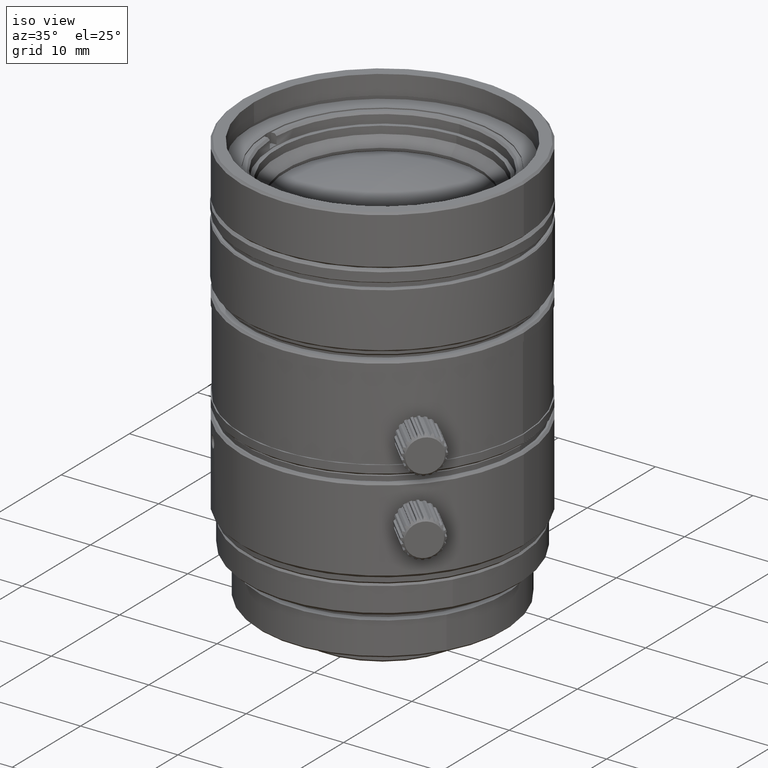
[diagram: clean part render]
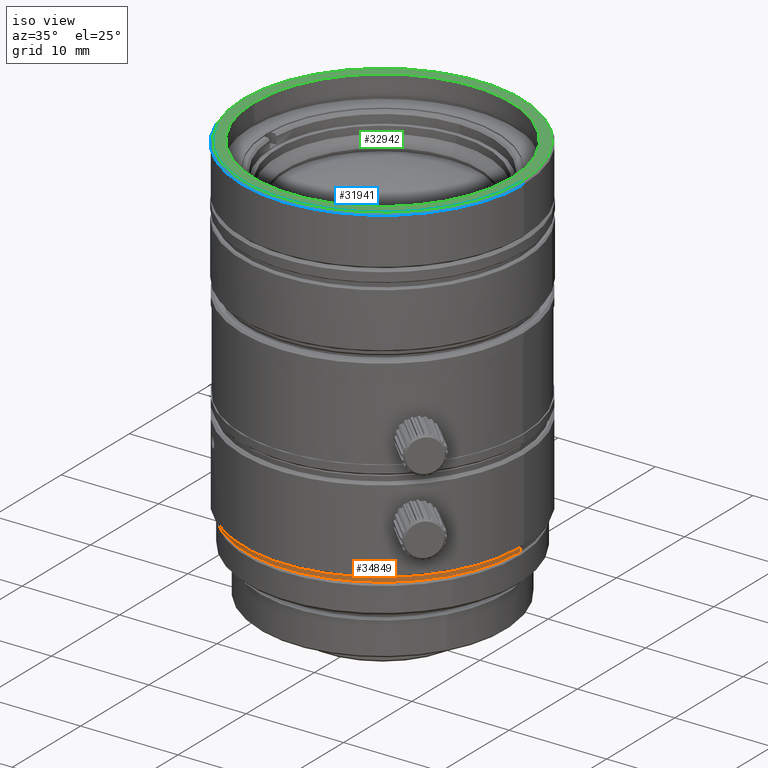
[diagram: same view with three faces highlighted in distinct colors, each labeled with its STEP entity id]
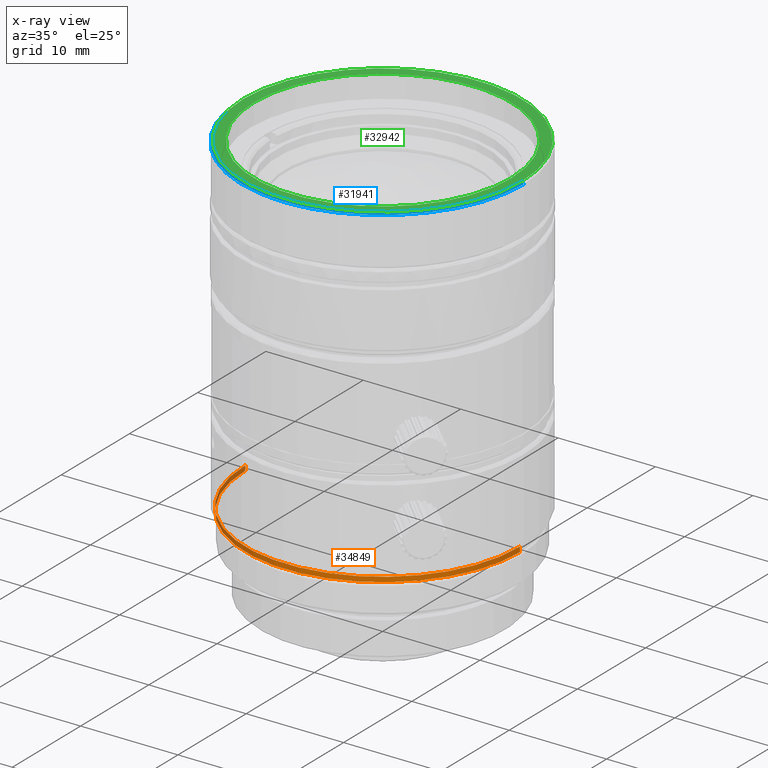
[diagram: x-ray of the same camera — body ghosted, the three highlighted faces saturated]
A machine part, iso view with three faces highlighted in distinct colors.
The next image is the same camera in x-ray (body ghosted, the three faces saturated) — at least one of them is partly hidden behind the body in this view.
Their STEP definitions:

[orange] entity #34849 — the highlighted cylindrical surface (partial cylindrical patch) has radius 14.1 mm, axis along (0, 0, 1).
#851 = FACE_OUTER_BOUND ( 'NONE', #12874, .T. ) ;
#1104 = VERTEX_POINT ( 'NONE', #18976 ) ;
#1272 = VERTEX_POINT ( 'NONE', #15628 ) ;
#1298 = LINE ( 'NONE', #21730, #18748 ) ;
#1527 = CYLINDRICAL_SURFACE ( 'NONE', #8398, 14.09999979744999976 ) ;
#3388 = ORIENTED_EDGE ( 'NONE', *, *, #4843, .F. ) ;
#3784 = CARTESIAN_POINT ( 'NONE',  ( 14.09999979744999976, 0.000000000000000000, -2.035699077264000234 ) ) ;
#4014 = EDGE_CURVE ( 'NONE', #27575, #1104, #12425, .T. ) ;
#4523 = CIRCLE ( 'NONE', #32746, 14.09999979744999976 ) ;
#4843 = EDGE_CURVE ( 'NONE', #7307, #1272, #1298, .T. ) ;
#5092 = CARTESIAN_POINT ( 'NONE',  ( 0.000000000000000000, 0.000000000000000000, 6.200000956604000635 ) ) ;
#6133 = DIRECTION ( 'NONE',  ( 1.000000000000000000, 0.000000000000000000, 0.000000000000000000 ) ) ;
#6746 = CARTESIAN_POINT ( 'NONE',  ( 14.09999979744999976, 0.000000000000000000, 6.200000956604000635 ) ) ;
#7307 = VERTEX_POINT ( 'NONE', #11897 ) ;
#8398 = AXIS2_PLACEMENT_3D ( 'NONE', #31585, #18456, #35186 ) ;
#9210 = ORIENTED_EDGE ( 'NONE', *, *, #17999, .T. ) ;
#9962 = DIRECTION ( 'NONE',  ( 0.000000000000000000, 0.000000000000000000, 1.000000000000000000 ) ) ;
#10065 = ORIENTED_EDGE ( 'NONE', *, *, #14826, .T. ) ;
#11897 = CARTESIAN_POINT ( 'NONE',  ( -14.09999979744999976, 1.726751961992547223E-15, 6.200000956604000635 ) ) ;
#12425 = LINE ( 'NONE', #3784, #17561 ) ;
#12874 = EDGE_LOOP ( 'NONE', ( #3388, #9210, #19900, #10065 ) ) ;
#14826 = EDGE_CURVE ( 'NONE', #1104, #1272, #4523, .T. ) ;
#15628 = CARTESIAN_POINT ( 'NONE',  ( -14.09999979744999976, 1.726751961992547223E-15, 6.700000956604000635 ) ) ;
#17561 = VECTOR ( 'NONE', #25884, 1000.000000000000000 ) ;
#17999 = EDGE_CURVE ( 'NONE', #7307, #27575, #30139, .T. ) ;
#18456 = DIRECTION ( 'NONE',  ( 0.000000000000000000, 0.000000000000000000, 1.000000000000000000 ) ) ;
#18748 = VECTOR ( 'NONE', #9962, 1000.000000000000000 ) ;
#18976 = CARTESIAN_POINT ( 'NONE',  ( 14.09999979744999976, 0.000000000000000000, 6.700000956604000635 ) ) ;
#19900 = ORIENTED_EDGE ( 'NONE', *, *, #4014, .T. ) ;
#21730 = CARTESIAN_POINT ( 'NONE',  ( -14.09999979744999976, 1.726751961992547223E-15, -2.035699077264000234 ) ) ;
#22895 = CARTESIAN_POINT ( 'NONE',  ( 0.000000000000000000, 0.000000000000000000, 6.700000956604000635 ) ) ;
#25884 = DIRECTION ( 'NONE',  ( 0.000000000000000000, 0.000000000000000000, 1.000000000000000000 ) ) ;
#27575 = VERTEX_POINT ( 'NONE', #6746 ) ;
#30139 = CIRCLE ( 'NONE', #33070, 14.09999979744999976 ) ;
#31585 = CARTESIAN_POINT ( 'NONE',  ( 0.000000000000000000, 0.000000000000000000, -2.035699077264000234 ) ) ;
#31878 = DIRECTION ( 'NONE',  ( 0.000000000000000000, 0.000000000000000000, -1.000000000000000000 ) ) ;
#32746 = AXIS2_PLACEMENT_3D ( 'NONE', #22895, #31878, #6133 ) ;
#33056 = DIRECTION ( 'NONE',  ( 0.000000000000000000, 0.000000000000000000, 1.000000000000000000 ) ) ;
#33070 = AXIS2_PLACEMENT_3D ( 'NONE', #5092, #33056, #36181 ) ;
#34849 = ADVANCED_FACE ( 'NONE', ( #851 ), #1527, .T. ) ;
#35186 = DIRECTION ( 'NONE',  ( 1.000000000000000000, 0.000000000000000000, 0.000000000000000000 ) ) ;
#36181 = DIRECTION ( 'NONE',  ( -1.000000000000000000, 0.000000000000000000, 0.000000000000000000 ) ) ;

[blue] entity #31941 — the highlighted conical surface has half-angle 45 deg.
#926 = DIRECTION ( 'NONE',  ( -1.000000000000000000, 0.000000000000000000, 0.000000000000000000 ) ) ;
#2361 = EDGE_CURVE ( 'NONE', #26939, #30156, #5446, .T. ) ;
#3136 = ORIENTED_EDGE ( 'NONE', *, *, #2361, .T. ) ;
#3264 = LINE ( 'NONE', #25716, #30385 ) ;
#5446 = LINE ( 'NONE', #10610, #19330 ) ;
#7333 = DIRECTION ( 'NONE',  ( -1.000000000000000000, 0.000000000000000000, 0.000000000000000000 ) ) ;
#7398 = CONICAL_SURFACE ( 'NONE', #29740, 14.40000000216999965, 0.7853981625000003852 ) ;
#7997 = CARTESIAN_POINT ( 'NONE',  ( -14.50000000217000107, 1.775737859029410716E-15, 40.45004379446000087 ) ) ;
#8207 = EDGE_CURVE ( 'NONE', #21756, #10361, #3264, .T. ) ;
#8589 = DIRECTION ( 'NONE',  ( -2.736156902165769755E-17, 0.000000000000000000, -1.000000000000000000 ) ) ;
#10361 = VERTEX_POINT ( 'NONE', #16228 ) ;
#10610 = CARTESIAN_POINT ( 'NONE',  ( -14.40000000216999965, 0.000000000000000000, 40.55004379446000229 ) ) ;
#10887 = ORIENTED_EDGE ( 'NONE', *, *, #15848, .T. ) ;
#13726 = DIRECTION ( 'NONE',  ( -0.7071067805519559712, 0.000000000000000000, -0.7071067818211389522 ) ) ;
#15848 = EDGE_CURVE ( 'NONE', #21756, #26939, #35125, .T. ) ;
#16228 = CARTESIAN_POINT ( 'NONE',  ( 14.50000000217000107, 0.000000000000000000, 40.45004379446000087 ) ) ;
#17978 = DIRECTION ( 'NONE',  ( 0.7071067805519559712, 8.659560554583427742E-17, -0.7071067818211389522 ) ) ;
#18211 = CARTESIAN_POINT ( 'NONE',  ( -14.30000000217999911, 0.000000000000000000, 40.65004379444999927 ) ) ;
#19111 = DIRECTION ( 'NONE',  ( 0.000000000000000000, 0.000000000000000000, -1.000000000000000000 ) ) ;
#19330 = VECTOR ( 'NONE', #13726, 1000.000000000000114 ) ;
#20613 = CARTESIAN_POINT ( 'NONE',  ( 0.000000000000000000, 0.000000000000000000, 40.65004379444999927 ) ) ;
#21756 = VERTEX_POINT ( 'NONE', #29809 ) ;
#24976 = CARTESIAN_POINT ( 'NONE',  ( 0.000000000000000000, 0.000000000000000000, 40.55004379446000229 ) ) ;
#25327 = FACE_OUTER_BOUND ( 'NONE', #33003, .T. ) ;
#25716 = CARTESIAN_POINT ( 'NONE',  ( 14.40000000216999965, 1.763491391037937161E-15, 40.55004379446000229 ) ) ;
#26101 = EDGE_CURVE ( 'NONE', #10361, #30156, #28417, .T. ) ;
#26126 = DIRECTION ( 'NONE',  ( 0.000000000000000000, 0.000000000000000000, -1.000000000000000000 ) ) ;
#26939 = VERTEX_POINT ( 'NONE', #18211 ) ;
#27282 = ORIENTED_EDGE ( 'NONE', *, *, #8207, .F. ) ;
#28417 = CIRCLE ( 'NONE', #35969, 14.50000000217000107 ) ;
#28670 = ORIENTED_EDGE ( 'NONE', *, *, #26101, .F. ) ;
#29740 = AXIS2_PLACEMENT_3D ( 'NONE', #24976, #8589, #33255 ) ;
#29809 = CARTESIAN_POINT ( 'NONE',  ( 14.30000000217999911, 1.763491391027481993E-15, 40.65004379444999927 ) ) ;
#30156 = VERTEX_POINT ( 'NONE', #7997 ) ;
#30385 = VECTOR ( 'NONE', #17978, 1000.000000000000114 ) ;
#31048 = AXIS2_PLACEMENT_3D ( 'NONE', #20613, #26126, #926 ) ;
#31941 = ADVANCED_FACE ( 'NONE', ( #25327 ), #7398, .T. ) ;
#32537 = CARTESIAN_POINT ( 'NONE',  ( 0.000000000000000000, 0.000000000000000000, 40.45004379446000087 ) ) ;
#33003 = EDGE_LOOP ( 'NONE', ( #27282, #10887, #3136, #28670 ) ) ;
#33255 = DIRECTION ( 'NONE',  ( -1.000000000000000000, 0.000000000000000000, 0.000000000000000000 ) ) ;
#35125 = CIRCLE ( 'NONE', #31048, 14.30000000217999911 ) ;
#35969 = AXIS2_PLACEMENT_3D ( 'NONE', #32537, #19111, #7333 ) ;

[green] entity #32942 — the highlighted planar face has unit normal (0, 0, -1).
#311 = DIRECTION ( 'NONE',  ( 0.000000000000000000, 0.000000000000000000, 1.000000000000000000 ) ) ;
#787 = CIRCLE ( 'NONE', #26636, 14.30000000217999911 ) ;
#926 = DIRECTION ( 'NONE',  ( -1.000000000000000000, 0.000000000000000000, 0.000000000000000000 ) ) ;
#1092 = ORIENTED_EDGE ( 'NONE', *, *, #22776, .F. ) ;
#1653 = EDGE_LOOP ( 'NONE', ( #6808, #33878 ) ) ;
#4726 = CARTESIAN_POINT ( 'NONE',  ( 0.000000000000000000, 0.000000000000000000, 40.65004379444999927 ) ) ;
#5919 = DIRECTION ( 'NONE',  ( 0.000000000000000000, 0.000000000000000000, -1.000000000000000000 ) ) ;
#6808 = ORIENTED_EDGE ( 'NONE', *, *, #18487, .F. ) ;
#11341 = DIRECTION ( 'NONE',  ( 0.000000000000000000, 1.000000000000000000, 0.000000000000000000 ) ) ;
#11625 = DIRECTION ( 'NONE',  ( 0.000000000000000000, -1.000000000000000000, 0.000000000000000000 ) ) ;
#11715 = CARTESIAN_POINT ( 'NONE',  ( -13.19999999999999929, 1.616533774874506204E-15, 40.65004379444999927 ) ) ;
#15848 = EDGE_CURVE ( 'NONE', #21756, #26939, #35125, .T. ) ;
#16400 = EDGE_LOOP ( 'NONE', ( #1092, #19599 ) ) ;
#17141 = FACE_BOUND ( 'NONE', #16400, .T. ) ;
#17177 = CARTESIAN_POINT ( 'NONE',  ( 0.000000000000000000, 0.000000000000000000, 40.65004379444999927 ) ) ;
#17866 = CIRCLE ( 'NONE', #32562, 13.19999999999999929 ) ;
#18211 = CARTESIAN_POINT ( 'NONE',  ( -14.30000000217999911, 0.000000000000000000, 40.65004379444999927 ) ) ;
#18487 = EDGE_CURVE ( 'NONE', #26939, #21756, #787, .T. ) ;
#19599 = ORIENTED_EDGE ( 'NONE', *, *, #22641, .F. ) ;
#19733 = CARTESIAN_POINT ( 'NONE',  ( 0.000000000000000000, -14.30000000217000000, 40.65004379444999927 ) ) ;
#20613 = CARTESIAN_POINT ( 'NONE',  ( 0.000000000000000000, 0.000000000000000000, 40.65004379444999927 ) ) ;
#20802 = CIRCLE ( 'NONE', #30815, 13.19999999999999929 ) ;
#21756 = VERTEX_POINT ( 'NONE', #29809 ) ;
#22641 = EDGE_CURVE ( 'NONE', #34804, #33151, #17866, .T. ) ;
#22676 = FACE_OUTER_BOUND ( 'NONE', #1653, .T. ) ;
#22776 = EDGE_CURVE ( 'NONE', #33151, #34804, #20802, .T. ) ;
#23441 = DIRECTION ( 'NONE',  ( 0.000000000000000000, 0.000000000000000000, -1.000000000000000000 ) ) ;
#24974 = DIRECTION ( 'NONE',  ( 0.000000000000000000, 1.000000000000000000, 0.000000000000000000 ) ) ;
#26126 = DIRECTION ( 'NONE',  ( 0.000000000000000000, 0.000000000000000000, -1.000000000000000000 ) ) ;
#26636 = AXIS2_PLACEMENT_3D ( 'NONE', #17177, #23441, #28591 ) ;
#26939 = VERTEX_POINT ( 'NONE', #18211 ) ;
#28591 = DIRECTION ( 'NONE',  ( -1.000000000000000000, 0.000000000000000000, 0.000000000000000000 ) ) ;
#29809 = CARTESIAN_POINT ( 'NONE',  ( 14.30000000217999911, 1.763491391027481993E-15, 40.65004379444999927 ) ) ;
#30815 = AXIS2_PLACEMENT_3D ( 'NONE', #36372, #311, #11341 ) ;
#31048 = AXIS2_PLACEMENT_3D ( 'NONE', #20613, #26126, #926 ) ;
#31679 = PLANE ( 'NONE',  #35607 ) ;
#32562 = AXIS2_PLACEMENT_3D ( 'NONE', #4726, #32889, #24974 ) ;
#32889 = DIRECTION ( 'NONE',  ( 0.000000000000000000, 0.000000000000000000, 1.000000000000000000 ) ) ;
#32942 = ADVANCED_FACE ( 'NONE', ( #22676, #17141 ), #31679, .F. ) ;
#33151 = VERTEX_POINT ( 'NONE', #33997 ) ;
#33878 = ORIENTED_EDGE ( 'NONE', *, *, #15848, .F. ) ;
#33997 = CARTESIAN_POINT ( 'NONE',  ( 13.19999999999999929, 0.000000000000000000, 40.65004379444999927 ) ) ;
#34804 = VERTEX_POINT ( 'NONE', #11715 ) ;
#35125 = CIRCLE ( 'NONE', #31048, 14.30000000217999911 ) ;
#35607 = AXIS2_PLACEMENT_3D ( 'NONE', #19733, #5919, #11625 ) ;
#36372 = CARTESIAN_POINT ( 'NONE',  ( 0.000000000000000000, 0.000000000000000000, 40.65004379444999927 ) ) ;